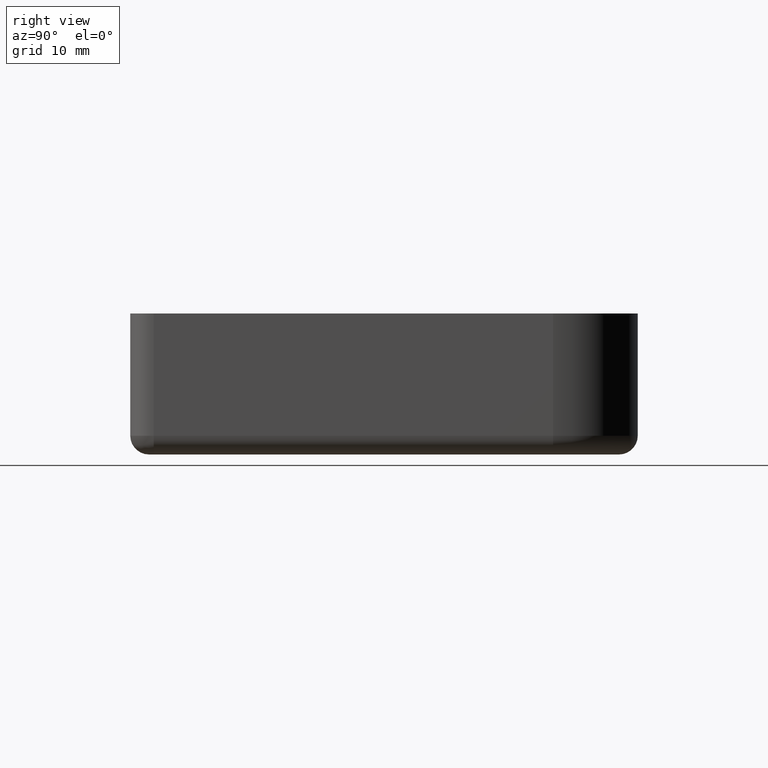
[diagram: clean part render]
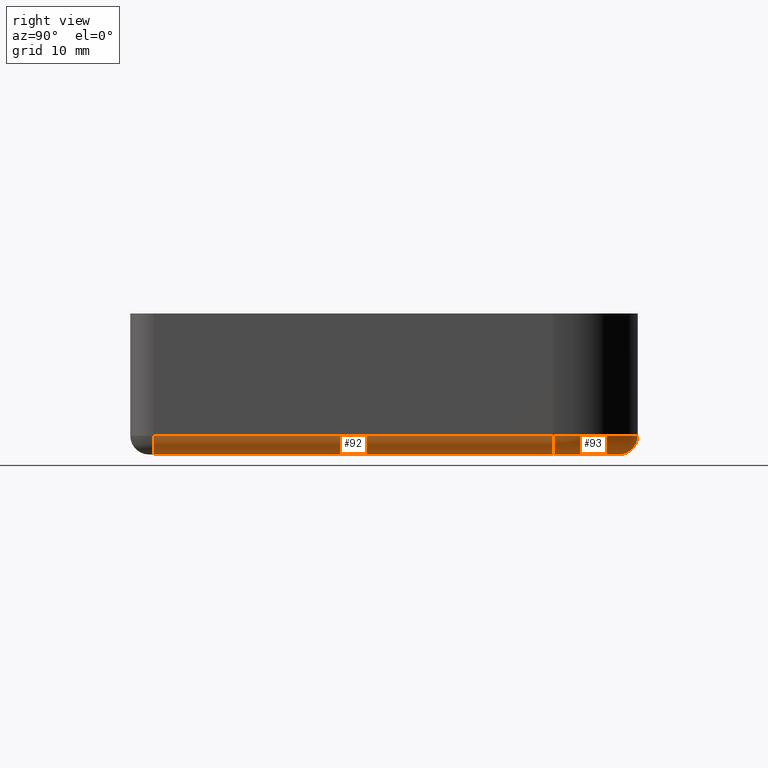
[diagram: same view with one multi-face feature highlighted, each face labeled with its STEP entity id]
A machine part, right view. The highlighted faces form ONE feature: a constant-radius fillet chain: 2 tangent blend faces with common blend radius 2 mm. The faces share edges in the B-rep.
Their STEP definitions:
[1] entity #92 (Cylinder):
#92 = ADVANCED_FACE( '', ( #150 ), #151, .T. );
#150 = FACE_OUTER_BOUND( '', #229, .T. );
#151 = CYLINDRICAL_SURFACE( '', #230, 2.00000000000000 );
#229 = EDGE_LOOP( '', ( #516, #517, #518, #519 ) );
#230 = AXIS2_PLACEMENT_3D( '', #520, #521, #522 );
#516 = ORIENTED_EDGE( '', *, *, #733, .T. );
#517 = ORIENTED_EDGE( '', *, *, #722, .F. );
#518 = ORIENTED_EDGE( '', *, *, #734, .T. );
#519 = ORIENTED_EDGE( '', *, *, #700, .F. );
#520 = CARTESIAN_POINT( '', ( -9.09756753438018E-015, -49.5000000000000, -13.0000000000000 ) );
#521 = DIRECTION( '', ( 1.83690953073357E-016, 1.00000000000000, 0.000000000000000 ) );
#522 = DIRECTION( '', ( 1.00000000000000, -1.83690953073357E-016, 0.000000000000000 ) );
#700 = EDGE_CURVE( '', #804, #834, #835, .T. );
#722 = EDGE_CURVE( '', #866, #868, #869, .F. );
#733 = EDGE_CURVE( '', #804, #868, #889, .T. );
#734 = EDGE_CURVE( '', #866, #834, #890, .T. );
#804 = VERTEX_POINT( '', #973 );
#834 = VERTEX_POINT( '', #1013 );
#835 = LINE( '', #1014, #1015 );
#866 = VERTEX_POINT( '', #1061 );
#868 = VERTEX_POINT( '', #1063 );
#869 = LINE( '', #1064, #1065 );
#889 = CIRCLE( '', #1090, 2.00000000000000 );
#890 = CIRCLE( '', #1091, 2.00000000000000 );
#973 = CARTESIAN_POINT( '', ( 1.99999999999999, -49.5000000000000, -13.0000000000000 ) );
#1013 = CARTESIAN_POINT( '', ( 2.00000000000000, -7.00000000000001, -13.0000000000000 ) );
#1014 = CARTESIAN_POINT( '', ( 2.00000000000000, -7.00000000000001, -13.0000000000000 ) );
#1015 = VECTOR( '', #1200, 1000.00000000000 );
#1061 = CARTESIAN_POINT( '', ( -1.29070202876253E-015, -7.00000000000001, -15.0000000000000 ) );
#1063 = CARTESIAN_POINT( '', ( -1.72499276147875E-015, -49.5000000000000, -15.0000000000000 ) );
#1064 = CARTESIAN_POINT( '', ( -9.09756753438018E-015, -49.5000000000000, -15.0000000000000 ) );
#1065 = VECTOR( '', #1234, 1000.00000000000 );
#1090 = AXIS2_PLACEMENT_3D( '', #1255, #1256, #1257 );
#1091 = AXIS2_PLACEMENT_3D( '', #1258, #1259, #1260 );
#1200 = DIRECTION( '', ( 1.83690953073357E-016, 1.00000000000000, 0.000000000000000 ) );
#1234 = DIRECTION( '', ( 1.83690953073357E-016, 1.00000000000000, 0.000000000000000 ) );
#1255 = CARTESIAN_POINT( '', ( -1.72499276147875E-015, -49.5000000000000, -13.0000000000000 ) );
#1256 = DIRECTION( '', ( 7.06135453928947E-015, 1.00000000000000, -6.93889390390723E-015 ) );
#1257 = DIRECTION( '', ( -8.49741356322415E-031, -6.93889390390723E-015, -1.00000000000000 ) );
#1258 = CARTESIAN_POINT( '', ( -1.29070202876253E-015, -7.00000000000001, -13.0000000000000 ) );
#1259 = DIRECTION( '', ( -1.22460635382238E-016, -1.00000000000000, 0.000000000000000 ) );
#1260 = DIRECTION( '', ( 0.000000000000000, 0.000000000000000, 1.00000000000000 ) );
[2] entity #93 (Torus):
#93 = ADVANCED_FACE( '', ( #152 ), #153, .T. );
#152 = FACE_OUTER_BOUND( '', #231, .T. );
#153 = TOROIDAL_SURFACE( '', #232, 7.00000000000000, 2.00000000000000 );
#231 = EDGE_LOOP( '', ( #523, #524, #525, #526 ) );
#232 = AXIS2_PLACEMENT_3D( '', #527, #528, #529 );
#523 = ORIENTED_EDGE( '', *, *, #735, .T. );
#524 = ORIENTED_EDGE( '', *, *, #702, .F. );
#525 = ORIENTED_EDGE( '', *, *, #734, .F. );
#526 = ORIENTED_EDGE( '', *, *, #721, .F. );
#527 = CARTESIAN_POINT( '', ( -7.00000000000000, -7.00000000000000, -13.0000000000000 ) );
#528 = DIRECTION( '', ( 0.000000000000000, 0.000000000000000, 1.00000000000000 ) );
#529 = DIRECTION( '', ( -1.00000000000000, 1.22460635382238E-016, 0.000000000000000 ) );
#702 = EDGE_CURVE( '', #834, #837, #838, .T. );
#721 = EDGE_CURVE( '', #865, #866, #867, .F. );
#734 = EDGE_CURVE( '', #866, #834, #890, .T. );
#735 = EDGE_CURVE( '', #865, #837, #891, .T. );
#834 = VERTEX_POINT( '', #1013 );
#837 = VERTEX_POINT( '', #1018 );
#838 = CIRCLE( '', #1019, 9.00000000000000 );
#865 = VERTEX_POINT( '', #1060 );
#866 = VERTEX_POINT( '', #1061 );
#867 = CIRCLE( '', #1062, 7.00000000000000 );
#890 = CIRCLE( '', #1091, 2.00000000000000 );
#891 = CIRCLE( '', #1092, 2.00000000000000 );
#1013 = CARTESIAN_POINT( '', ( 2.00000000000000, -7.00000000000001, -13.0000000000000 ) );
#1018 = CARTESIAN_POINT( '', ( -7.00000000000000, 2.00000000000000, -13.0000000000000 ) );
#1019 = AXIS2_PLACEMENT_3D( '', #1202, #1203, #1204 );
#1060 = CARTESIAN_POINT( '', ( -7.00000000000000, 2.59194792365247E-015, -15.0000000000000 ) );
#1061 = CARTESIAN_POINT( '', ( -1.29070202876253E-015, -7.00000000000001, -15.0000000000000 ) );
#1062 = AXIS2_PLACEMENT_3D( '', #1231, #1232, #1233 );
#1091 = AXIS2_PLACEMENT_3D( '', #1258, #1259, #1260 );
#1092 = AXIS2_PLACEMENT_3D( '', #1261, #1262, #1263 );
#1202 = CARTESIAN_POINT( '', ( -7.00000000000000, -7.00000000000000, -13.0000000000000 ) );
#1203 = DIRECTION( '', ( 0.000000000000000, 0.000000000000000, 1.00000000000000 ) );
#1204 = DIRECTION( '', ( -1.00000000000000, 1.22460635382238E-016, 0.000000000000000 ) );
#1231 = CARTESIAN_POINT( '', ( -7.00000000000000, -7.00000000000000, -15.0000000000000 ) );
#1232 = DIRECTION( '', ( 0.000000000000000, 0.000000000000000, 1.00000000000000 ) );
#1233 = DIRECTION( '', ( -1.00000000000000, 1.22460635382238E-016, 0.000000000000000 ) );
#1258 = CARTESIAN_POINT( '', ( -1.29070202876253E-015, -7.00000000000001, -13.0000000000000 ) );
#1259 = DIRECTION( '', ( -1.22460635382238E-016, -1.00000000000000, 0.000000000000000 ) );
#1260 = DIRECTION( '', ( 0.000000000000000, 0.000000000000000, 1.00000000000000 ) );
#1261 = CARTESIAN_POINT( '', ( -7.00000000000000, 2.59194792365247E-015, -13.0000000000000 ) );
#1262 = DIRECTION( '', ( 1.00000000000000, -1.22460635382238E-016, 0.000000000000000 ) );
#1263 = DIRECTION( '', ( 0.000000000000000, 0.000000000000000, 1.00000000000000 ) );